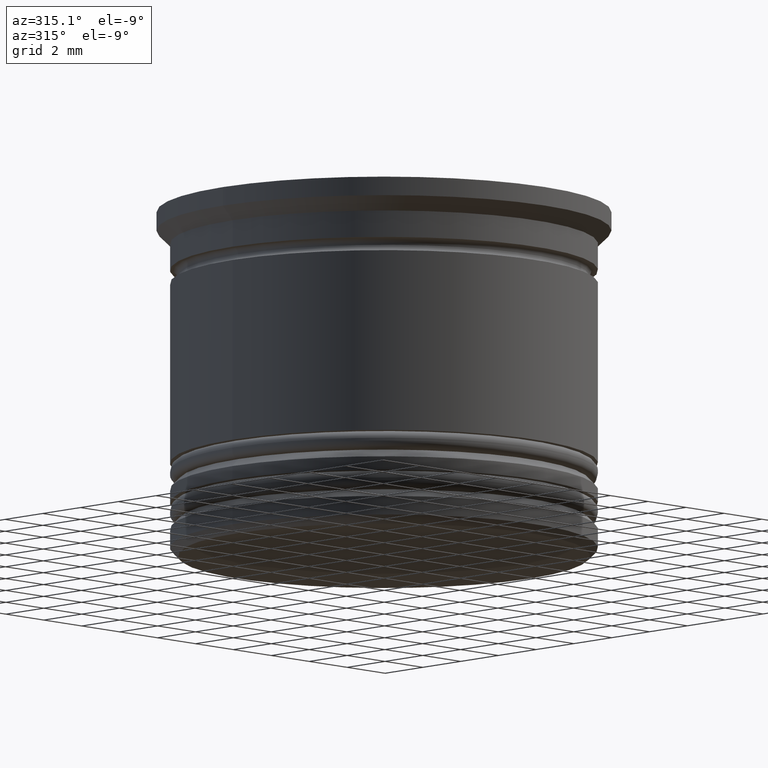
[diagram: clean part render]
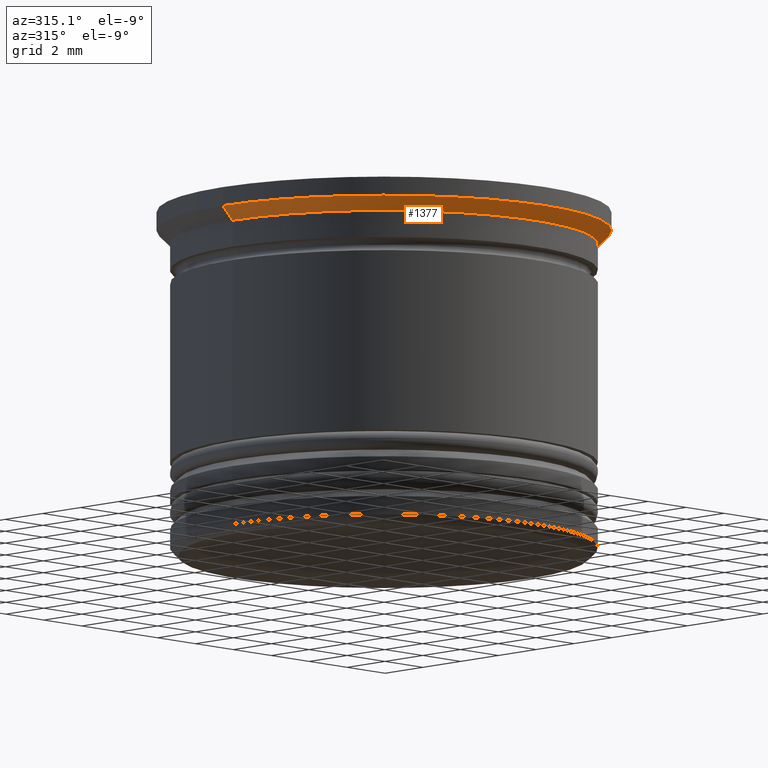
[diagram: same view with one face highlighted and labeled with its STEP entity id]
A machine part, auxiliary view. The second image highlights one B-rep face of the part: STEP entity #1377.
In plain terms, the highlighted conical surface has half-angle 45 deg.
Its self-contained STEP definition (entity closure, byte-faithful):
#47 = CIRCLE ( 'NONE', #1846, 7.999999999999998224 ) ;
#67 = EDGE_CURVE ( 'NONE', #747, #1609, #1269, .T. ) ;
#91 = CARTESIAN_POINT ( 'NONE',  ( 8.500000000000000000, 0.000000000000000000, -0.6999999999999952927 ) ) ;
#154 = CARTESIAN_POINT ( 'NONE',  ( 0.000000000000000000, 0.000000000000000000, -0.6999999999999952927 ) ) ;
#241 = AXIS2_PLACEMENT_3D ( 'NONE', #682, #1443, #648 ) ;
#280 = CARTESIAN_POINT ( 'NONE',  ( -7.999999999999998224, 9.797174393178823685E-16, -1.199999999999999289 ) ) ;
#400 = DIRECTION ( 'NONE',  ( 0.7071067811865500152, 0.000000000000000000, 0.7071067811865451302 ) ) ;
#432 = CARTESIAN_POINT ( 'NONE',  ( -8.500000000000000000, 1.040949779275250140E-15, -0.6999999999999952927 ) ) ;
#576 = DIRECTION ( 'NONE',  ( 1.000000000000000000, 0.000000000000000000, 0.000000000000000000 ) ) ;
#587 = CARTESIAN_POINT ( 'NONE',  ( 0.000000000000000000, 0.000000000000000000, -1.199999999999999289 ) ) ;
#647 = DIRECTION ( 'NONE',  ( -0.7071067811865500152, 8.659560562354963673E-17, 0.7071067811865451302 ) ) ;
#648 = DIRECTION ( 'NONE',  ( 1.000000000000000000, 0.000000000000000000, 0.000000000000000000 ) ) ;
#664 = CIRCLE ( 'NONE', #698, 8.500000000000000000 ) ;
#682 = CARTESIAN_POINT ( 'NONE',  ( 0.000000000000000000, 0.000000000000000000, -0.6999999999999952927 ) ) ;
#698 = AXIS2_PLACEMENT_3D ( 'NONE', #154, #1231, #1092 ) ;
#700 = VECTOR ( 'NONE', #400, 1000.000000000000114 ) ;
#712 = VERTEX_POINT ( 'NONE', #717 ) ;
#717 = CARTESIAN_POINT ( 'NONE',  ( 7.999999999999998224, 0.000000000000000000, -1.199999999999999289 ) ) ;
#747 = VERTEX_POINT ( 'NONE', #280 ) ;
#756 = ORIENTED_EDGE ( 'NONE', *, *, #67, .F. ) ;
#929 = EDGE_CURVE ( 'NONE', #1609, #1128, #664, .T. ) ;
#987 = EDGE_LOOP ( 'NONE', ( #756, #1592, #1115, #1317 ) ) ;
#1092 = DIRECTION ( 'NONE',  ( -1.000000000000000000, 0.000000000000000000, 0.000000000000000000 ) ) ;
#1115 = ORIENTED_EDGE ( 'NONE', *, *, #1200, .T. ) ;
#1128 = VERTEX_POINT ( 'NONE', #1288 ) ;
#1200 = EDGE_CURVE ( 'NONE', #712, #1128, #1501, .T. ) ;
#1231 = DIRECTION ( 'NONE',  ( -0.000000000000000000, -0.000000000000000000, 1.000000000000000000 ) ) ;
#1269 = LINE ( 'NONE', #432, #1271 ) ;
#1271 = VECTOR ( 'NONE', #647, 1000.000000000000114 ) ;
#1288 = CARTESIAN_POINT ( 'NONE',  ( 8.500000000000000000, 0.000000000000000000, -0.6999999999999952927 ) ) ;
#1317 = ORIENTED_EDGE ( 'NONE', *, *, #929, .F. ) ;
#1372 = CARTESIAN_POINT ( 'NONE',  ( -8.500000000000000000, 1.040949779275250140E-15, -0.6999999999999952927 ) ) ;
#1377 = ADVANCED_FACE ( 'NONE', ( #1707 ), #1845, .T. ) ;
#1443 = DIRECTION ( 'NONE',  ( -0.000000000000000000, -0.000000000000000000, 1.000000000000000000 ) ) ;
#1481 = DIRECTION ( 'NONE',  ( -0.000000000000000000, -0.000000000000000000, 1.000000000000000000 ) ) ;
#1501 = LINE ( 'NONE', #91, #700 ) ;
#1592 = ORIENTED_EDGE ( 'NONE', *, *, #1871, .T. ) ;
#1609 = VERTEX_POINT ( 'NONE', #1372 ) ;
#1707 = FACE_OUTER_BOUND ( 'NONE', #987, .T. ) ;
#1845 = CONICAL_SURFACE ( 'NONE', #241, 8.500000000000000000, 0.7853981633974517207 ) ;
#1846 = AXIS2_PLACEMENT_3D ( 'NONE', #587, #1481, #576 ) ;
#1871 = EDGE_CURVE ( 'NONE', #747, #712, #47, .T. ) ;